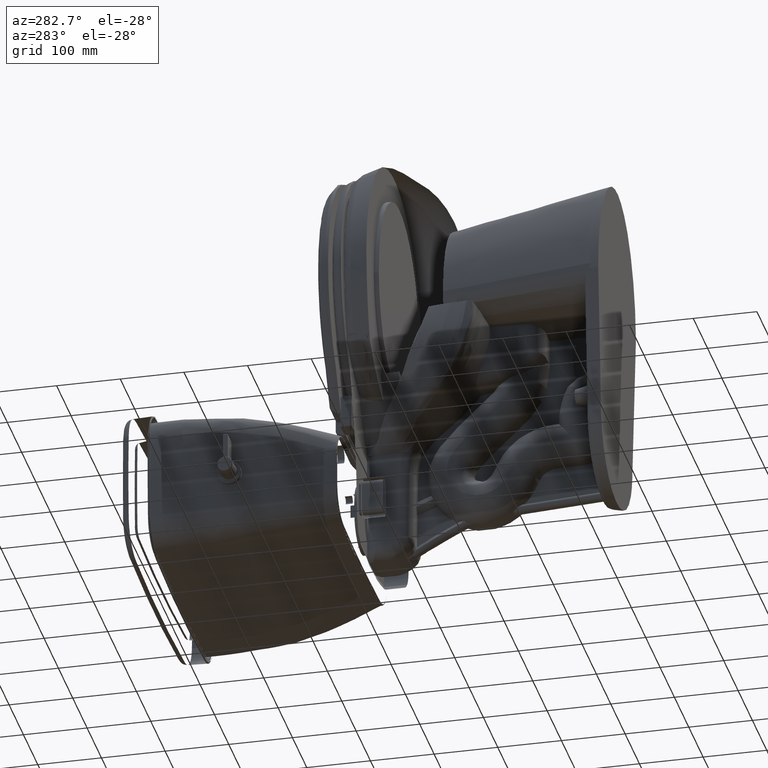
[diagram: clean part render]
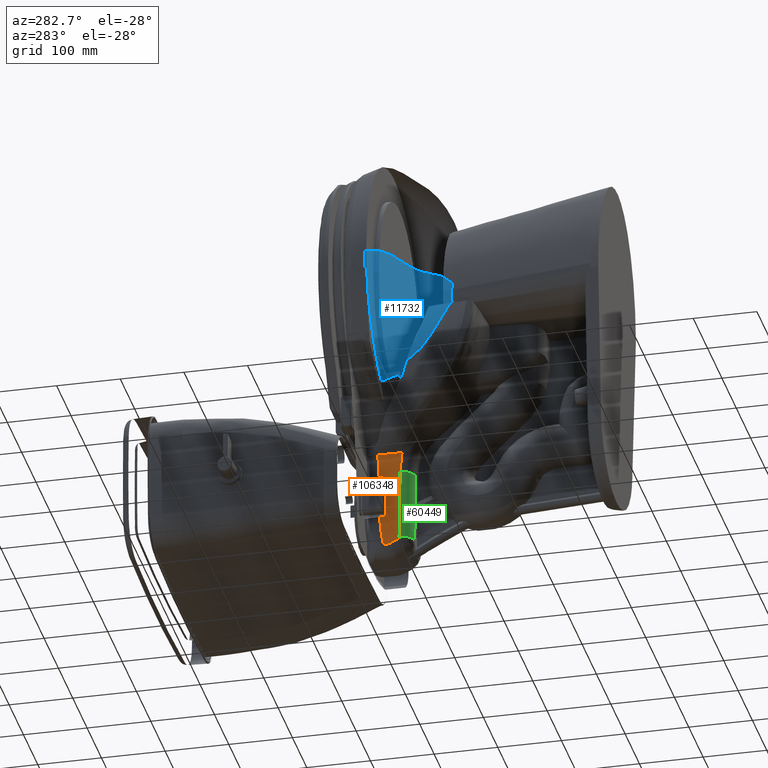
[diagram: same view with three faces highlighted in distinct colors, each labeled with its STEP entity id]
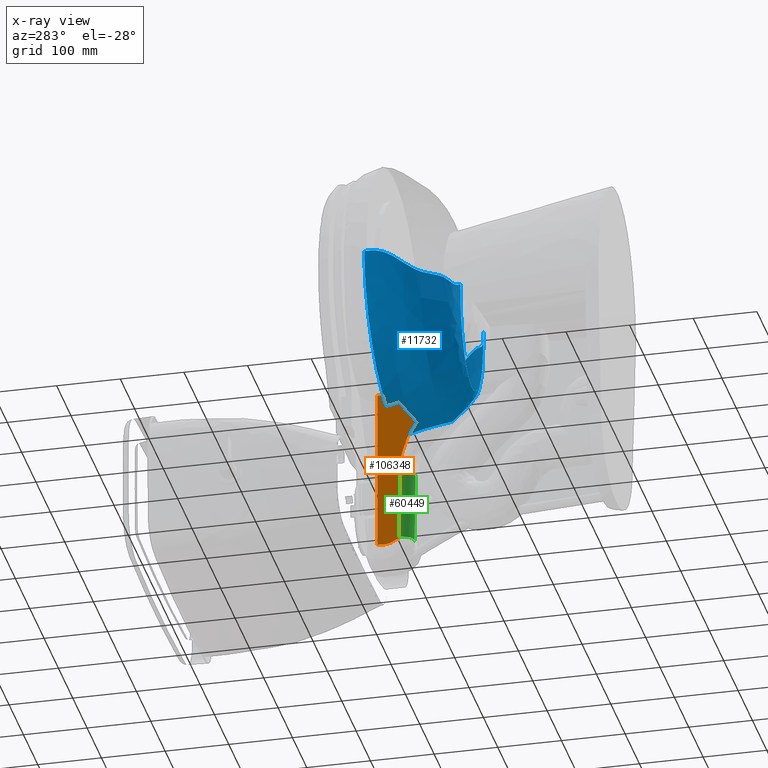
[diagram: x-ray of the same camera — body ghosted, the three highlighted faces saturated]
A machine part, auxiliary view with three faces highlighted in distinct colors.
The next image is the same camera in x-ray (body ghosted, the three faces saturated) — at least one of them is partly hidden behind the body in this view.
Their STEP definitions:

[orange] entity #106348 — the highlighted planar face has unit normal (-1, -0, 0).
#329 = ORIENTED_EDGE ( 'NONE', *, *, #164025, .T. ) ;
#518 = CARTESIAN_POINT ( 'NONE',  ( -1.624015748031496300, 11.07513254023550800, 13.10380930790444700 ) ) ;
#1858 = CARTESIAN_POINT ( 'NONE',  ( -1.624015748031496300, 11.07906256279257000, 13.10310074710345600 ) ) ;
#4139 = CARTESIAN_POINT ( 'NONE',  ( -1.624015748031496300, 11.05793984446220600, 13.11253673810275400 ) ) ;
#4388 = CARTESIAN_POINT ( 'NONE',  ( -1.624015748031496500, 11.43326119549833600, 13.83560855663342800 ) ) ;
#7992 = CARTESIAN_POINT ( 'NONE',  ( -1.624015748031496300, 4.175544082836213800, 12.54868173038691400 ) ) ;
#8673 = CARTESIAN_POINT ( 'NONE',  ( -1.624015748031495800, 6.429665055986050400, 13.05543070827092000 ) ) ;
#9199 = CARTESIAN_POINT ( 'NONE',  ( -1.624015748031496300, 11.08573345675515200, 13.10213947946317400 ) ) ;
#10593 = VERTEX_POINT ( 'NONE', #75763 ) ;
#12265 = ORIENTED_EDGE ( 'NONE', *, *, #110493, .T. ) ;
#12944 = DIRECTION ( 'NONE',  ( 0.0000000000000000000, 7.934768962186999700E-016, 1.000000000000000000 ) ) ;
#15419 = CARTESIAN_POINT ( 'NONE',  ( -1.624015748031496500, 11.07129820226846400, 13.10493544380893600 ) ) ;
#19141 = CARTESIAN_POINT ( 'NONE',  ( -1.624015748031496300, 11.05793984446214200, 13.11253673810267600 ) ) ;
#19398 = CARTESIAN_POINT ( 'NONE',  ( -1.624015748031496300, 11.12704714347317000, 13.15148929596849200 ) ) ;
#20832 = VERTEX_POINT ( 'NONE', #173252 ) ;
#21263 = EDGE_CURVE ( 'NONE', #20832, #66821, #135536, .T. ) ;
#22199 = CARTESIAN_POINT ( 'NONE',  ( -1.624015748031496500, 4.089724197103585400, 12.50727833411109000 ) ) ;
#23548 = CARTESIAN_POINT ( 'NONE',  ( -1.624015748031496500, 4.065249054823715000, 12.49517539205028900 ) ) ;
#23819 = VERTEX_POINT ( 'NONE', #116551 ) ;
#24220 = CARTESIAN_POINT ( 'NONE',  ( -1.624015748031496500, 5.965570586294322900, 13.03302946129430300 ) ) ;
#30762 = VERTEX_POINT ( 'NONE', #153174 ) ;
#31215 = EDGE_CURVE ( 'NONE', #189430, #20832, #57933, .T. ) ;
#31964 = CARTESIAN_POINT ( 'NONE',  ( -1.624015748031496300, 6.583685011007480300, 12.26460079878385700 ) ) ;
#33990 = EDGE_CURVE ( 'NONE', #74032, #189430, #190647, .T. ) ;
#34502 = ORIENTED_EDGE ( 'NONE', *, *, #31215, .T. ) ;
#36182 = AXIS2_PLACEMENT_3D ( 'NONE', #31964, #93646, #63186 ) ;
#36255 = CARTESIAN_POINT ( 'NONE',  ( -1.624015748031496300, 11.12766103383754800, 13.14508512891309000 ) ) ;
#36394 = VECTOR ( 'NONE', #127505, 39.37007874015748100 ) ;
#42126 = ORIENTED_EDGE ( 'NONE', *, *, #85400, .T. ) ;
#42408 = EDGE_CURVE ( 'NONE', #23819, #80150, #113493, .T. ) ;
#48134 = VECTOR ( 'NONE', #140925, 39.37007874015748900 ) ;
#50555 = CARTESIAN_POINT ( 'NONE',  ( -1.624015748031496300, 11.12304963074632800, 13.12578169295937500 ) ) ;
#51226 = CARTESIAN_POINT ( 'NONE',  ( -1.624015748031496300, 11.12753766871622200, 13.14829012194472400 ) ) ;
#51796 = CARTESIAN_POINT ( 'NONE',  ( -1.624015748031496500, 11.44351013723120400, 14.09393940311137600 ) ) ;
#52569 = CARTESIAN_POINT ( 'NONE',  ( -1.624015748031495600, 11.10490460382959700, 13.10700149408048500 ) ) ;
#55403 = CARTESIAN_POINT ( 'NONE',  ( -1.624015748031496300, 4.118270852902545800, 12.52122959937917400 ) ) ;
#55694 = B_SPLINE_CURVE_WITH_KNOTS ( 'NONE', 3,
 ( #160115, #51796, #97140, #4388, #67351, #190586 ),
 .UNSPECIFIED., .F., .F.,
 ( 4, 2, 4 ),
 ( 0.0000000000000000000, 0.5000000000000000000, 1.000000000000000000 ),
 .UNSPECIFIED. ) ;
#57933 = LINE ( 'NONE', #4139, #48134 ) ;
#63186 = DIRECTION ( 'NONE',  ( -1.110223024625000000E-016, 0.0000000000000000000, 1.000000000000000000 ) ) ;
#66804 = CARTESIAN_POINT ( 'NONE',  ( -1.624015748031496300, 11.11945713101001800, 13.12010422923673900 ) ) ;
#66821 = VERTEX_POINT ( 'NONE', #163835 ) ;
#67351 = CARTESIAN_POINT ( 'NONE',  ( -1.624015748031496500, 11.41632082991931300, 13.75139125071499700 ) ) ;
#67462 = CARTESIAN_POINT ( 'NONE',  ( -1.624015748031496300, 11.09274276259547600, 13.10286191171119300 ) ) ;
#68950 = CARTESIAN_POINT ( 'NONE',  ( -1.624015748031496300, 4.524221175839065800, 12.70078332963766800 ) ) ;
#70292 = CARTESIAN_POINT ( 'NONE',  ( -1.624015748031496500, 5.734390395520866200, 13.00634960247934100 ) ) ;
#70969 = CARTESIAN_POINT ( 'NONE',  ( -1.624015748031496500, 3.326668050690386700, 12.05027422458211300 ) ) ;
#73818 = EDGE_CURVE ( 'NONE', #80150, #74032, #159871, .T. ) ;
#74032 = VERTEX_POINT ( 'NONE', #100596 ) ;
#75763 = CARTESIAN_POINT ( 'NONE',  ( -1.624015748031496500, 11.42707137129212400, 14.45337552549015700 ) ) ;
#77222 = FACE_OUTER_BOUND ( 'NONE', #110668, .T. ) ;
#79696 = CARTESIAN_POINT ( 'NONE',  ( -1.624015748031495800, 11.06089892463452400, 13.11006244487558600 ) ) ;
#79888 = CARTESIAN_POINT ( 'NONE',  ( -1.624015748031495800, 11.42978268679844900, 14.17935511759764100 ) ) ;
#80150 = VERTEX_POINT ( 'NONE', #113694 ) ;
#82089 = ORIENTED_EDGE ( 'NONE', *, *, #98176, .T. ) ;
#82349 = CARTESIAN_POINT ( 'NONE',  ( -1.624015748031495800, 11.11736636019339400, 13.11746121728465700 ) ) ;
#83826 = CARTESIAN_POINT ( 'NONE',  ( -1.624015748031496500, 5.841028490792696800, 13.01974266722637600 ) ) ;
#84498 = CARTESIAN_POINT ( 'NONE',  ( -1.624015748031496300, 4.290810216046528700, 12.60178439428873700 ) ) ;
#85174 = CARTESIAN_POINT ( 'NONE',  ( -1.624015748031496300, 6.215077449489573500, 13.05205713275296900 ) ) ;
#85400 = EDGE_CURVE ( 'NONE', #10593, #187359, #189400, .T. ) ;
#93646 = DIRECTION ( 'NONE',  ( -1.000000000000000000, 1.368455531567204200E-048, -1.110223024625000000E-016 ) ) ;
#96860 = ORIENTED_EDGE ( 'NONE', *, *, #42408, .T. ) ;
#97140 = CARTESIAN_POINT ( 'NONE',  ( -1.624015748031496500, 11.44694999765457800, 14.00809017207795500 ) ) ;
#98176 = EDGE_CURVE ( 'NONE', #30762, #119554, #157514, .T. ) ;
#99389 = CARTESIAN_POINT ( 'NONE',  ( -1.624015748031496500, 5.145805366068331400, 12.90181881944287300 ) ) ;
#100596 = CARTESIAN_POINT ( 'NONE',  ( -1.624015748031496300, 11.07906256279257000, 13.10310074710345600 ) ) ;
#101045 = CARTESIAN_POINT ( 'NONE',  ( -1.624015748031496500, 11.86058292616299200, 14.45313440424316400 ) ) ;
#106348 = ADVANCED_FACE ( 'NONE', ( #77222 ), #109887, .T. ) ;
#107941 = CARTESIAN_POINT ( 'NONE',  ( -1.624015748031496300, 3.326668050690512400, 12.05027422458228300 ) ) ;
#107980 = VECTOR ( 'NONE', #134244, 39.37007874015748900 ) ;
#109887 = PLANE ( 'NONE',  #36182 ) ;
#110493 = EDGE_CURVE ( 'NONE', #66821, #30762, #113458, .T. ) ;
#110668 = EDGE_LOOP ( 'NONE', ( #34502, #187834, #12265, #82089, #115001, #42126, #329, #96860, #145669, #140575 ) ) ;
#112177 = CARTESIAN_POINT ( 'NONE',  ( -1.624015748031495600, 11.12717344383685100, 13.13866350483407400 ) ) ;
#112582 = CARTESIAN_POINT ( 'NONE',  ( -1.624015748031496500, 11.42707137129212700, 14.45337552549015900 ) ) ;
#113458 = LINE ( 'NONE', #107941, #171490 ) ;
#113493 = LINE ( 'NONE', #161694, #118410 ) ;
#113694 = CARTESIAN_POINT ( 'NONE',  ( -1.624015748031496300, 11.12704714347317000, 13.15148929596849200 ) ) ;
#114873 = CARTESIAN_POINT ( 'NONE',  ( -1.624015748031496300, 11.11050579545679200, 13.11047850953001500 ) ) ;
#115001 = ORIENTED_EDGE ( 'NONE', *, *, #131308, .F. ) ;
#115681 = CARTESIAN_POINT ( 'NONE',  ( -1.624015748031496300, 5.778810277065876900, 13.01215603060776100 ) ) ;
#116347 = CARTESIAN_POINT ( 'NONE',  ( -1.624015748031495800, 4.069370140719893700, 12.49722199234837700 ) ) ;
#116551 = CARTESIAN_POINT ( 'NONE',  ( -1.624015748031496300, 11.38928449983937200, 13.66919744660039400 ) ) ;
#116671 = CARTESIAN_POINT ( 'NONE',  ( -1.624015748031496300, 1.222724008596811200, 15.24645292999960600 ) ) ;
#116967 = CARTESIAN_POINT ( 'NONE',  ( -1.624015748031497200, 1.222724008596810100, 14.45905123339978700 ) ) ;
#118410 = VECTOR ( 'NONE', #196188, 39.37007874015748100 ) ;
#119554 = VERTEX_POINT ( 'NONE', #116967 ) ;
#123540 = DIRECTION ( 'NONE',  ( -1.043826510325514000E-016, -0.8039073083393254400, 0.5947546045207390300 ) ) ;
#123788 = CARTESIAN_POINT ( 'NONE',  ( -1.624015748031496300, 11.05793984446214200, 13.11253673810267600 ) ) ;
#127505 = DIRECTION ( 'NONE',  ( 0.0000000000000000000, 0.009894090788549159500, -0.9999510522857946200 ) ) ;
#130920 = VECTOR ( 'NONE', #12944, 39.37007874015748100 ) ;
#131222 = CARTESIAN_POINT ( 'NONE',  ( -1.624015748031496500, 5.725508369038938600, 13.00515350682136200 ) ) ;
#131308 = EDGE_CURVE ( 'NONE', #10593, #119554, #158912, .T. ) ;
#131903 = CARTESIAN_POINT ( 'NONE',  ( -1.624015748031495800, 3.804498906690593000, 12.36527572712799400 ) ) ;
#134244 = DIRECTION ( 'NONE',  ( -1.110222852894106100E-016, -0.9999998453180956000, 0.0005562048046673531800 ) ) ;
#135536 = B_SPLINE_CURVE_WITH_KNOTS ( 'NONE', 3,
 ( #176595, #8673, #85174, #24220, #83826, #115681, #163052, #70292, #131222, #162375, #192190, #99389, #193511, #68950, #84498, #7992, #55403, #22199, #192848, #116347, #23548, #131903, #178612, #70969 ),
 .UNSPECIFIED., .F., .F.,
 ( 4, 1, 1, 1, 1, 1, 2, 2, 2, 1, 1, 1, 1, 1, 2, 2, 4 ),
 ( 0.0000000000000000000, 0.1250000000000045000, 0.1875000000000067400, 0.2187500000000077700, 0.2343750000000078300, 0.2421875000000078500, 0.2460937500000078500, 0.2500000000000078300, 0.5000000000000091000, 0.6250000000000089900, 0.6875000000000087700, 0.7187500000000086600, 0.7343750000000089900, 0.7421875000000093300, 0.7460937500000097700, 0.7500000000000101000, 1.000000000000000000 ),
 .UNSPECIFIED. ) ;
#140575 = ORIENTED_EDGE ( 'NONE', *, *, #33990, .T. ) ;
#140925 = DIRECTION ( 'NONE',  ( 0.0000000000000000000, -0.9999087062783822400, -0.01351218371291979500 ) ) ;
#141331 = CARTESIAN_POINT ( 'NONE',  ( -1.624015748031496500, 11.07708156634918200, 13.10338517101672900 ) ) ;
#141997 = CARTESIAN_POINT ( 'NONE',  ( -1.624015748031496700, 11.06936102451516900, 13.10566276766392100 ) ) ;
#144602 = CARTESIAN_POINT ( 'NONE',  ( -1.624015748031495800, 11.12653847992384100, 13.13530021934748100 ) ) ;
#145260 = CARTESIAN_POINT ( 'NONE',  ( -1.624015748031496700, 11.12041836757591000, 13.12148165518684600 ) ) ;
#145669 = ORIENTED_EDGE ( 'NONE', *, *, #73818, .T. ) ;
#153174 = CARTESIAN_POINT ( 'NONE',  ( -1.624015748031496500, 1.222724008596810100, 13.60683478039331000 ) ) ;
#157514 = LINE ( 'NONE', #116671, #130920 ) ;
#158912 = LINE ( 'NONE', #101045, #107980 ) ;
#159550 = CARTESIAN_POINT ( 'NONE',  ( -1.624015748031496300, 11.12448136344257300, 13.12890196367263600 ) ) ;
#159871 = B_SPLINE_CURVE_WITH_KNOTS ( 'NONE', 3,
 ( #19398, #51226, #36255, #112177, #144602, #159550, #50555, #145260, #66804, #82349, #190700, #114873, #52569, #67462, #9199, #164916 ),
 .UNSPECIFIED., .F., .F.,
 ( 4, 2, 2, 2, 2, 2, 2, 4 ),
 ( 0.0000000000000000000, 0.09638077415925873400, 0.1927615483185174700, 0.2891423224777761600, 0.3373327095574055200, 0.3855230966370349300, 0.5782846449556448000, 0.7710461932742547200 ),
 .UNSPECIFIED. ) ;
#160115 = CARTESIAN_POINT ( 'NONE',  ( -1.624015748031495800, 11.42978268679844900, 14.17935511759764100 ) ) ;
#161694 = CARTESIAN_POINT ( 'NONE',  ( -1.624015748031496500, 11.38928449983937200, 13.66919744660039400 ) ) ;
#162375 = CARTESIAN_POINT ( 'NONE',  ( -1.624015748031495800, 5.721126461639285800, 13.00455791138812200 ) ) ;
#163052 = CARTESIAN_POINT ( 'NONE',  ( -1.624015748031496300, 5.747714378708470100, 13.00812690240229400 ) ) ;
#163835 = CARTESIAN_POINT ( 'NONE',  ( -1.624015748031496500, 3.326668050690386700, 12.05027422458211300 ) ) ;
#164025 = EDGE_CURVE ( 'NONE', #187359, #23819, #55694, .T. ) ;
#164916 = CARTESIAN_POINT ( 'NONE',  ( -1.624015748031496300, 11.07906256279257000, 13.10310074710345600 ) ) ;
#171490 = VECTOR ( 'NONE', #123540, 39.37007874015748100 ) ;
#173252 = CARTESIAN_POINT ( 'NONE',  ( -1.624015613408317900, 6.573045496275518900, 13.05193048887822500 ) ) ;
#176595 = CARTESIAN_POINT ( 'NONE',  ( -1.624015613408317900, 6.573045496275518900, 13.05193048887822500 ) ) ;
#178612 = CARTESIAN_POINT ( 'NONE',  ( -1.624015748031495600, 3.559642418893029300, 12.21764149009979600 ) ) ;
#187359 = VERTEX_POINT ( 'NONE', #79888 ) ;
#187834 = ORIENTED_EDGE ( 'NONE', *, *, #21263, .T. ) ;
#189400 = LINE ( 'NONE', #112582, #36394 ) ;
#189430 = VERTEX_POINT ( 'NONE', #19141 ) ;
#190586 = CARTESIAN_POINT ( 'NONE',  ( -1.624015748031496300, 11.38928449983937200, 13.66919744660039400 ) ) ;
#190647 = B_SPLINE_CURVE_WITH_KNOTS ( 'NONE', 3,
 ( #1858, #141331, #518, #15419, #141997, #194996, #79696, #123788 ),
 .UNSPECIFIED., .F., .F.,
 ( 4, 2, 2, 4 ),
 ( 0.7710461932742547200, 0.8282846449556977600, 0.8855230966371407900, 1.000000000000000000 ),
 .UNSPECIFIED. ) ;
#190700 = CARTESIAN_POINT ( 'NONE',  ( -1.624015748031495800, 11.11620782586881600, 13.11616872860437900 ) ) ;
#192190 = CARTESIAN_POINT ( 'NONE',  ( -1.624015748031496300, 5.428680046497935200, 12.96443056511968500 ) ) ;
#192848 = CARTESIAN_POINT ( 'NONE',  ( -1.624015748031496500, 4.077509193011430900, 12.50125096333243800 ) ) ;
#193511 = CARTESIAN_POINT ( 'NONE',  ( -1.624015748031496300, 4.729222615727366900, 12.77328574430013400 ) ) ;
#194996 = CARTESIAN_POINT ( 'NONE',  ( -1.624015748031496300, 11.06412410466929700, 13.10803466561247500 ) ) ;
#196188 = DIRECTION ( 'NONE',  ( 4.707353719254776100E-016, -0.4518714063449485500, -0.8920830858882138300 ) ) ;

[blue] entity #11732 — the highlighted face is a freeform B-spline surface patch.
#411 = CARTESIAN_POINT ( 'NONE',  ( -6.374789803220472200, -6.545680079023622300, 11.61000269624488400 ) ) ;
#1095 = CARTESIAN_POINT ( 'NONE',  ( 0.02612232093976377800, 1.149805500592677300, 8.976377952755905600 ) ) ;
#7332 = CARTESIAN_POINT ( 'NONE',  ( -7.663330732019685100, -3.451059756331889900, 13.89763779527559100 ) ) ;
#9605 = CARTESIAN_POINT ( 'NONE',  ( 5.918047356978740400, -2.949789798700787700, 9.453031909952363400 ) ) ;
#11368 = CARTESIAN_POINT ( 'NONE',  ( 3.164905371275551300, -3.682291863497244100, 8.976377952755905600 ) ) ;
#11732 = ADVANCED_FACE ( 'NONE', ( #56056 ), #158484, .T. ) ;
#12021 = CARTESIAN_POINT ( 'NONE',  ( 7.669822629392126800, -3.452692490822441700, 13.89763779527559100 ) ) ;
#12684 = CARTESIAN_POINT ( 'NONE',  ( 4.411237578590551300, 0.4122800545987007600, 9.453031909952363400 ) ) ;
#13333 = CARTESIAN_POINT ( 'NONE',  ( 2.556470637829763700, -0.9222876452287401800, 8.976377952755905600 ) ) ;
#13987 = CARTESIAN_POINT ( 'NONE',  ( -3.017594738014961000, -2.145177111233071100, 8.976377952755905600 ) ) ;
#14643 = CARTESIAN_POINT ( 'NONE',  ( -4.087713333460629700, 4.640137322735038900, 10.82833840437598400 ) ) ;
#15316 = CARTESIAN_POINT ( 'NONE',  ( -5.984139236803150300, 0.4541611670214961100, 12.68380940278897700 ) ) ;
#15980 = CARTESIAN_POINT ( 'NONE',  ( 2.219025534785747900, 5.313153716440944600, 10.82833840437598400 ) ) ;
#16654 = CARTESIAN_POINT ( 'NONE',  ( -1.787237832325197000, -0.4750244352933070700, 9.808365518358268500 ) ) ;
#17091 = VERTEX_POINT ( 'NONE', #126774 ) ;
#20221 = CARTESIAN_POINT ( 'NONE',  ( 3.164905371275551300, -3.682291863497244100, 8.976377952755905600 ) ) ;
#21542 = CARTESIAN_POINT ( 'NONE',  ( 1.874215126277323000, 0.1666678062541732400, 8.976377952755905600 ) ) ;
#22901 = CARTESIAN_POINT ( 'NONE',  ( 0.02612232093976377800, 1.149805500592677300, 8.976377952755905600 ) ) ;
#28235 = CARTESIAN_POINT ( 'NONE',  ( 4.326051432180708600, 1.926824449947441000, 12.68380940278897700 ) ) ;
#28879 = CARTESIAN_POINT ( 'NONE',  ( 4.191538315979134000, 4.647348280815748500, 10.82833840437598400 ) ) ;
#29535 = CARTESIAN_POINT ( 'NONE',  ( -6.379703382763779900, -4.810097242177166200, 11.61000269624488400 ) ) ;
#30181 = CARTESIAN_POINT ( 'NONE',  ( -2.549952660448032000, -0.8307167114346457600, 8.976377952755905600 ) ) ;
#30843 = CARTESIAN_POINT ( 'NONE',  ( -0.03626714788866141500, 0.8969876486343307800, 11.61000269624488400 ) ) ;
#31501 = CARTESIAN_POINT ( 'NONE',  ( -3.048967992540157800, -8.288413450125984700, 9.808365518358268500 ) ) ;
#31916 = ORIENTED_EDGE ( 'NONE', *, *, #182437, .T. ) ;
#40756 = VERTEX_POINT ( 'NONE', #162171 ) ;
#41159 = CARTESIAN_POINT ( 'NONE',  ( 1.724131792577834800, -0.5166397306409449300, 9.808365518358268500 ) ) ;
#41841 = CARTESIAN_POINT ( 'NONE',  ( 2.977838378661024100, -6.241049428700787200, 9.808365518358268500 ) ) ;
#43181 = CARTESIAN_POINT ( 'NONE',  ( 7.726143887099606600, -3.400828018284645500, 12.68380940278897700 ) ) ;
#45143 = CARTESIAN_POINT ( 'NONE',  ( 0.003946237597480315200, 3.124598654075433100, 13.89763779527559100 ) ) ;
#45801 = CARTESIAN_POINT ( 'NONE',  ( -2.259103294147244400, 2.883673840308071100, 12.68380940278897700 ) ) ;
#45931 = CARTESIAN_POINT ( 'NONE',  ( 7.669822629392126800, -3.452692490822441700, 13.89763779527559100 ) ) ;
#46469 = CARTESIAN_POINT ( 'NONE',  ( -3.164017844826378000, -4.959986052440944700, 8.976377952755905600 ) ) ;
#47138 = CARTESIAN_POINT ( 'NONE',  ( -0.02474210709877953200, 0.9038557958785433700, 9.808365518358268500 ) ) ;
#49802 = CARTESIAN_POINT ( 'NONE',  ( -7.663544278913386500, -5.456497436996063900, 13.89763779527559100 ) ) ;
#50363 = B_SPLINE_CURVE_WITH_KNOTS ( 'NONE', 12,
 ( #52073, #144108, #98755, #160391, #193527, #161724, #22901, #98101, #21542, #100755, #162395, #20221, #69639 ),
 .UNSPECIFIED., .F., .F.,
 ( 13, 13 ),
 ( 0.0000000000000000000, 1.000000000000000000 ),
 .UNSPECIFIED. ) ;
#50458 = CARTESIAN_POINT ( 'NONE',  ( -7.401834176850393900, -0.5504598801287402500, 10.82833840437598400 ) ) ;
#51129 = CARTESIAN_POINT ( 'NONE',  ( -5.796418717507873600, -3.064735862968897900, 9.453031909952363400 ) ) ;
#52073 = CARTESIAN_POINT ( 'NONE',  ( -3.164017844826378000, -4.959986052440944700, 8.976377952755905600 ) ) ;
#52716 = CARTESIAN_POINT ( 'NONE',  ( -5.943239271972441200, 0.3796972369427953400, 13.89763779527559100 ) ) ;
#55664 = CARTESIAN_POINT ( 'NONE',  ( 7.519254881346456400, -0.5398265804232282900, 10.82833840437598400 ) ) ;
#56056 = FACE_OUTER_BOUND ( 'NONE', #113644, .T. ) ;
#56783 = CARTESIAN_POINT ( 'NONE',  ( 3.154710663655827300, 1.205935376863700900, 9.453031909952363400 ) ) ;
#57460 = CARTESIAN_POINT ( 'NONE',  ( 7.726001198934253200, -5.417964312405511700, 12.68380940278897700 ) ) ;
#58772 = CARTESIAN_POINT ( 'NONE',  ( 6.315013548710629400, -4.800385479775590300, 11.61000269624488400 ) ) ;
#58837 = ORIENTED_EDGE ( 'NONE', *, *, #168187, .T. ) ;
#59435 = CARTESIAN_POINT ( 'NONE',  ( 3.077123086246102500, -5.071905309736219900, 8.976377952755905600 ) ) ;
#60084 = CARTESIAN_POINT ( 'NONE',  ( 0.005569285801535433700, 3.214666622947952600, 12.68380940278897700 ) ) ;
#60739 = CARTESIAN_POINT ( 'NONE',  ( -7.663544278913386500, -5.456497436996063900, 13.89763779527559100 ) ) ;
#61399 = CARTESIAN_POINT ( 'NONE',  ( -3.095455697010236000, -6.170297812496063900, 9.808365518358268500 ) ) ;
#62054 = CARTESIAN_POINT ( 'NONE',  ( -1.843404246056299200, 0.2333340141900787600, 8.976377952755905600 ) ) ;
#62730 = CARTESIAN_POINT ( 'NONE',  ( -5.908980294161416700, -3.072380172512598300, 11.61000269624488400 ) ) ;
#64213 = CARTESIAN_POINT ( 'NONE',  ( 0.003946237597480315200, 3.124598654075433100, 13.89763779527559100 ) ) ;
#64877 = CARTESIAN_POINT ( 'NONE',  ( 5.950547036489763500, 0.3784307397858267500, 13.89763779527559100 ) ) ;
#69639 = CARTESIAN_POINT ( 'NONE',  ( 3.077123086246102500, -5.071905309736219900, 8.976377952755905600 ) ) ;
#72337 = CARTESIAN_POINT ( 'NONE',  ( 7.495028456964961400, 0.8986575449828740900, 10.82833840437598400 ) ) ;
#73000 = CARTESIAN_POINT ( 'NONE',  ( 7.096808293681497100, -1.447193769712992200, 13.89763779527559100 ) ) ;
#73657 = CARTESIAN_POINT ( 'NONE',  ( 7.148990359150787700, -1.383677773799212500, 12.68380940278897700 ) ) ;
#74965 = CARTESIAN_POINT ( 'NONE',  ( 5.994529515770079100, 0.4525266153642126300, 12.68380940278897700 ) ) ;
#75611 = CARTESIAN_POINT ( 'NONE',  ( -2.244695031103937300, 2.795426621779960800, 13.89763779527559100 ) ) ;
#76822 = VERTEX_POINT ( 'NONE', #195044 ) ;
#76905 = CARTESIAN_POINT ( 'NONE',  ( -3.591065488205905900, -0.2164722385470472500, 11.61000269624488400 ) ) ;
#77563 = CARTESIAN_POINT ( 'NONE',  ( -4.315261481578740000, 1.928002494884133900, 12.68380940278897700 ) ) ;
#78249 = CARTESIAN_POINT ( 'NONE',  ( -7.089889302519685200, -1.445683114342913200, 13.89763779527559100 ) ) ;
#79720 = CARTESIAN_POINT ( 'NONE',  ( 7.096808293681497100, -1.447193769712992200, 13.89763779527559100 ) ) ;
#80910 = CARTESIAN_POINT ( 'NONE',  ( -7.717208584893700900, -5.415845826082677800, 12.68380940278897700 ) ) ;
#83836 = CARTESIAN_POINT ( 'NONE',  ( 2.252517352217480600, 2.794947740912559400, 13.89763779527559100 ) ) ;
#84508 = CARTESIAN_POINT ( 'NONE',  ( -7.663544278913386500, -5.456497436996063900, 13.89763779527559100 ) ) ;
#87914 = CARTESIAN_POINT ( 'NONE',  ( 2.252517352217480600, 2.794947740912559400, 13.89763779527559100 ) ) ;
#89464 = ORIENTED_EDGE ( 'NONE', *, *, #114233, .F. ) ;
#89897 = CARTESIAN_POINT ( 'NONE',  ( 2.801514132412086700, -4.094649515181102700, 9.808365518358268500 ) ) ;
#91213 = CARTESIAN_POINT ( 'NONE',  ( -2.454653649397637900, -2.061424651637401500, 9.808365518358268500 ) ) ;
#93202 = CARTESIAN_POINT ( 'NONE',  ( -3.154686678935827000, 1.137206021322283700, 9.453031909952363400 ) ) ;
#93854 = CARTESIAN_POINT ( 'NONE',  ( -5.943239271972441200, 0.3796972369427953400, 13.89763779527559100 ) ) ;
#98101 = CARTESIAN_POINT ( 'NONE',  ( 1.002964173743819100, 0.8869503837922440000, 8.976377952755905600 ) ) ;
#98755 = CARTESIAN_POINT ( 'NONE',  ( -3.017594738014961000, -2.145177111233071100, 8.976377952755905600 ) ) ;
#100755 = CARTESIAN_POINT ( 'NONE',  ( 2.556470637829763700, -0.9222876452287401800, 8.976377952755905600 ) ) ;
#101670 = CARTESIAN_POINT ( 'NONE',  ( 7.669609082498819700, -5.458130171484251400, 13.89763779527559100 ) ) ;
#102926 = CARTESIAN_POINT ( 'NONE',  ( 7.669609082498819700, -5.458130171484251400, 13.89763779527559100 ) ) ;
#104117 = CARTESIAN_POINT ( 'NONE',  ( 5.950547036489763500, 0.3784307397858267500, 13.89763779527559100 ) ) ;
#105439 = CARTESIAN_POINT ( 'NONE',  ( 2.376145249629645600, -2.118454352139763900, 9.808365518358268500 ) ) ;
#106089 = CARTESIAN_POINT ( 'NONE',  ( 6.920814322548426200, 2.325657145947165500, 10.82833840437598400 ) ) ;
#106742 = CARTESIAN_POINT ( 'NONE',  ( 0.05059573046082677800, 5.542142333017323200, 10.82833840437598400 ) ) ;
#107419 = CARTESIAN_POINT ( 'NONE',  ( -4.286260647338583100, 1.845152815168031600, 13.89763779527559100 ) ) ;
#107548 = VERTEX_POINT ( 'NONE', #180047 ) ;
#108086 = CARTESIAN_POINT ( 'NONE',  ( 0.8978879799185038900, 0.5319466690856693400, 9.808365518358268500 ) ) ;
#109430 = CARTESIAN_POINT ( 'NONE',  ( -1.655910704732677300, 1.669525499403149900, 9.453031909952363400 ) ) ;
#113644 = EDGE_LOOP ( 'NONE', ( #31916, #89464, #58837, #136920 ) ) ;
#114233 = EDGE_CURVE ( 'NONE', #40756, #17091, #136980, .T. ) ;
#116447 = B_SPLINE_CURVE_WITH_KNOTS ( 'NONE', 12,
 ( #102926, #45931, #79720, #64877, #161060, #83836, #64213, #131233, #173170, #52716, #130579, #7332, #84508 ),
 .UNSPECIFIED., .F., .F.,
 ( 13, 13 ),
 ( 0.0000000000000000000, 1.000000000000000000 ),
 .UNSPECIFIED. ) ;
#116612 = CARTESIAN_POINT ( 'NONE',  ( 2.911722171533582600, -8.357145796724410000, 9.808365518358268500 ) ) ;
#121051 = CARTESIAN_POINT ( 'NONE',  ( 4.293880544390945400, 1.844239167980787500, 13.89763779527559100 ) ) ;
#121706 = CARTESIAN_POINT ( 'NONE',  ( 2.994266746316418100, -2.252984814942913700, 8.976377952755905600 ) ) ;
#122355 = CARTESIAN_POINT ( 'NONE',  ( -7.716800995523621900, -3.398714282303149800, 12.68380940278897700 ) ) ;
#123017 = CARTESIAN_POINT ( 'NONE',  ( -5.692292672051181100, 3.606633909862361900, 10.82833840437598400 ) ) ;
#123681 = CARTESIAN_POINT ( 'NONE',  ( -6.810522156515748500, 2.314489975936378000, 10.82833840437598400 ) ) ;
#124851 = EDGE_CURVE ( 'NONE', #107548, #76822, #166776, .T. ) ;
#125023 = CARTESIAN_POINT ( 'NONE',  ( -7.139098643374016000, -1.381725506972441000, 12.68380940278897700 ) ) ;
#126774 = CARTESIAN_POINT ( 'NONE',  ( 3.077123086246102500, -5.071905309736219900, 8.976377952755905600 ) ) ;
#130579 = CARTESIAN_POINT ( 'NONE',  ( -7.089889302519685200, -1.445683114342913200, 13.89763779527559100 ) ) ;
#131233 = CARTESIAN_POINT ( 'NONE',  ( -2.244695031103937300, 2.795426621779960800, 13.89763779527559100 ) ) ;
#131474 = CARTESIAN_POINT ( 'NONE',  ( 7.726001198934253200, -5.417964312405511700, 12.68380940278897700 ) ) ;
#136599 = CARTESIAN_POINT ( 'NONE',  ( 3.520034215963425300, -0.2111700159282283700, 11.61000269624488400 ) ) ;
#136920 = ORIENTED_EDGE ( 'NONE', *, *, #124851, .F. ) ;
#136980 = B_SPLINE_CURVE_WITH_KNOTS ( 'NONE', 6,
 ( #101670, #131474, #163302, #55664, #116612, #9605, #178865 ),
 .UNSPECIFIED., .F., .F.,
 ( 7, 7 ),
 ( 0.0000000000000000000, 1.000000000000000000 ),
 .UNSPECIFIED. ) ;
#137898 = CARTESIAN_POINT ( 'NONE',  ( -0.01108329104704724300, 1.865232153285551100, 9.453031909952363400 ) ) ;
#138563 = CARTESIAN_POINT ( 'NONE',  ( -5.733922520137795700, -1.873044504335039400, 9.453031909952363400 ) ) ;
#139226 = CARTESIAN_POINT ( 'NONE',  ( -0.9562548286874016400, 0.9220840777851574400, 8.976377952755905600 ) ) ;
#142522 = CARTESIAN_POINT ( 'NONE',  ( -3.048967992540157800, -8.288413450125984700, 9.808365518358268500 ) ) ;
#144108 = CARTESIAN_POINT ( 'NONE',  ( -3.220412251082283900, -3.567787157738976600, 8.976377952755905600 ) ) ;
#149472 = CARTESIAN_POINT ( 'NONE',  ( 5.317757993253149400, -0.6038186196594488300, 9.453031909952363400 ) ) ;
#151498 = CARTESIAN_POINT ( 'NONE',  ( 2.911722171532874300, -8.357145796724410000, 9.808365518358268500 ) ) ;
#152806 = CARTESIAN_POINT ( 'NONE',  ( -7.663330732019685100, -3.451059756331889900, 13.89763779527559100 ) ) ;
#153468 = CARTESIAN_POINT ( 'NONE',  ( -2.898885159424409600, -4.027731791511810900, 9.808365518358268500 ) ) ;
#154122 = CARTESIAN_POINT ( 'NONE',  ( -7.381048544968503900, 0.8872170665874409300, 10.82833840437598400 ) ) ;
#154774 = CARTESIAN_POINT ( 'NONE',  ( 1.639475923053897800, 1.705758059691259800, 9.453031909952363400 ) ) ;
#157427 = CARTESIAN_POINT ( 'NONE',  ( -3.164017844826378000, -4.959986052440944700, 8.976377952755905600 ) ) ;
#158484 = B_SPLINE_SURFACE_WITH_KNOTS ( 'NONE', 12, 6, ( 
 ( #196901, #57460, #198877, #167733, #151498, #182672, #59435 ),
 ( #12021, #43181, #58772, #72337, #41841, #167070, #11368 ),
 ( #73000, #73657, #180678, #106089, #89897, #149472, #121706 ),
 ( #104117, #74965, #198222, #183313, #105439, #12684, #13333 ),
 ( #121051, #28235, #136599, #28879, #41159, #56783, #165091 ),
 ( #87914, #196237, #171018, #15980, #108086, #154774, #168386 ),
 ( #45143, #60084, #30843, #106742, #47138, #137898, #1095 ),
 ( #75611, #45801, #183964, #200831, #186622, #109430, #139226 ),
 ( #107419, #77563, #76905, #14643, #16654, #93202, #62054 ),
 ( #93854, #15316, #184623, #123017, #91213, #199542, #30181 ),
 ( #78249, #125023, #62730, #123681, #153468, #170349, #13987 ),
 ( #152806, #122355, #29535, #154122, #61399, #138563, #185953 ),
 ( #60739, #169698, #411, #185281, #31501, #169038, #46469 ) ),
 .UNSPECIFIED., .F., .F., .F.,
 ( 13, 13 ),
 ( 7, 7 ),
 ( 0.0000000000000000000, 1.000000000000000000 ),
 ( 0.0000000000000000000, 1.000000000000000000 ),
 .UNSPECIFIED. ) ;
#160391 = CARTESIAN_POINT ( 'NONE',  ( -2.549952660448032000, -0.8307167114346457600, 8.976377952755905600 ) ) ;
#161060 = CARTESIAN_POINT ( 'NONE',  ( 4.293880544390945400, 1.844239167980787500, 13.89763779527559100 ) ) ;
#161724 = CARTESIAN_POINT ( 'NONE',  ( -0.9562548286874016400, 0.9220840777851574400, 8.976377952755905600 ) ) ;
#162171 = CARTESIAN_POINT ( 'NONE',  ( 7.669609082498819700, -5.458130171484251400, 13.89763779527559100 ) ) ;
#162395 = CARTESIAN_POINT ( 'NONE',  ( 2.994266746316418100, -2.252984814942913700, 8.976377952755905600 ) ) ;
#163302 = CARTESIAN_POINT ( 'NONE',  ( 6.312567109076772100, -6.535836333078741200, 11.61000269624488400 ) ) ;
#165091 = CARTESIAN_POINT ( 'NONE',  ( 1.874215126277323000, 0.1666678062541732400, 8.976377952755905600 ) ) ;
#166776 = B_SPLINE_CURVE_WITH_KNOTS ( 'NONE', 6,
 ( #157427, #51129, #142522, #50458, #174342, #80910, #49802 ),
 .UNSPECIFIED., .F., .F.,
 ( 7, 7 ),
 ( 0.0000000000000000000, 1.000000000000000000 ),
 .UNSPECIFIED. ) ;
#167070 = CARTESIAN_POINT ( 'NONE',  ( 5.823178344185040000, -1.755276488494094800, 9.453031909952363400 ) ) ;
#167733 = CARTESIAN_POINT ( 'NONE',  ( 7.519254881347638500, -0.5398265804212598600, 10.82833840437598400 ) ) ;
#168187 = EDGE_CURVE ( 'NONE', #40756, #76822, #116447, .T. ) ;
#168386 = CARTESIAN_POINT ( 'NONE',  ( 1.002964173743819100, 0.8869503837922440000, 8.976377952755905600 ) ) ;
#169038 = CARTESIAN_POINT ( 'NONE',  ( -5.796418717507873600, -3.064735862968897900, 9.453031909952363400 ) ) ;
#169698 = CARTESIAN_POINT ( 'NONE',  ( -7.717208584893700900, -5.415845826082677800, 12.68380940278897700 ) ) ;
#170349 = CARTESIAN_POINT ( 'NONE',  ( -5.261738351255906400, -0.7148161897370077800, 9.453031909952363400 ) ) ;
#171018 = CARTESIAN_POINT ( 'NONE',  ( 1.827810860245866300, 0.6124271747911417300, 11.61000269624488400 ) ) ;
#173170 = CARTESIAN_POINT ( 'NONE',  ( -4.286260647338583100, 1.845152815168031600, 13.89763779527559100 ) ) ;
#174342 = CARTESIAN_POINT ( 'NONE',  ( -6.374789803220472200, -6.545680079023622300, 11.61000269624488400 ) ) ;
#178865 = CARTESIAN_POINT ( 'NONE',  ( 3.077123086246102500, -5.071905309736219900, 8.976377952755905600 ) ) ;
#180047 = CARTESIAN_POINT ( 'NONE',  ( -3.164017844826378000, -4.959986052440944700, 8.976377952755905600 ) ) ;
#180678 = CARTESIAN_POINT ( 'NONE',  ( 5.841863700020078400, -3.063489735287008300, 11.61000269624488400 ) ) ;
#182437 = EDGE_CURVE ( 'NONE', #107548, #17091, #50363, .T. ) ;
#182672 = CARTESIAN_POINT ( 'NONE',  ( 5.918047356979134800, -2.949789798700393800, 9.453031909952363400 ) ) ;
#183313 = CARTESIAN_POINT ( 'NONE',  ( 5.799054920250000600, 3.616366949496850700, 10.82833840437598400 ) ) ;
#183964 = CARTESIAN_POINT ( 'NONE',  ( -1.899959280044488400, 0.6096578143857087600, 11.61000269624488400 ) ) ;
#184623 = CARTESIAN_POINT ( 'NONE',  ( -4.962151554334646200, -1.488950074007874000, 11.61000269624488400 ) ) ;
#185281 = CARTESIAN_POINT ( 'NONE',  ( -7.401834176850393900, -0.5504598801287402500, 10.82833840437598400 ) ) ;
#185953 = CARTESIAN_POINT ( 'NONE',  ( -3.220412251082283900, -3.567787157738976600, 8.976377952755905600 ) ) ;
#186622 = CARTESIAN_POINT ( 'NONE',  ( -0.9508927879007874600, 0.5539082717850394300, 9.808365518358268500 ) ) ;
#193527 = CARTESIAN_POINT ( 'NONE',  ( -1.843404246056299200, 0.2333340141900787600, 8.976377952755905600 ) ) ;
#195044 = CARTESIAN_POINT ( 'NONE',  ( -7.663544278913386500, -5.456497436996063900, 13.89763779527559100 ) ) ;
#196237 = CARTESIAN_POINT ( 'NONE',  ( 2.270152174741102400, 2.883056728665000200, 12.68380940278897700 ) ) ;
#196901 = CARTESIAN_POINT ( 'NONE',  ( 7.669609082498819700, -5.458130171484251400, 13.89763779527559100 ) ) ;
#198222 = CARTESIAN_POINT ( 'NONE',  ( 4.892854234001968700, -1.481557167699606400, 11.61000269624488400 ) ) ;
#198877 = CARTESIAN_POINT ( 'NONE',  ( 6.312567109076378600, -6.535836333078741200, 11.61000269624488400 ) ) ;
#199542 = CARTESIAN_POINT ( 'NONE',  ( -4.386077038913386500, 0.3179261830763779900, 9.453031909952363400 ) ) ;
#200831 = CARTESIAN_POINT ( 'NONE',  ( -2.117150398109055100, 5.309314478114173700, 10.82833840437598400 ) ) ;

[green] entity #60449 — the highlighted cylindrical surface (edge-blend (fillet) strip) has radius 20 mm, axis along (-0, -0.0135, 0.9999).
#1348 = CARTESIAN_POINT ( 'NONE',  ( -1.183294638575267600, 6.582598366186474900, 12.34498080423749600 ) ) ;
#1998 = CARTESIAN_POINT ( 'NONE',  ( -1.624015748031496300, 11.05793984446214200, 13.11253673810267600 ) ) ;
#2012 = CARTESIAN_POINT ( 'NONE',  ( -1.132102287429371100, 6.582908720866615900, 12.32219583035721700 ) ) ;
#2670 = CARTESIAN_POINT ( 'NONE',  ( -0.8366141732283466400, 10.96624420544685000, 12.32382415047210400 ) ) ;
#2685 = CARTESIAN_POINT ( 'NONE',  ( -1.468332962124320000, 6.579392177849627800, 12.58146425930253000 ) ) ;
#4015 = CARTESIAN_POINT ( 'NONE',  ( -1.256134166599052600, 10.97452650320231800, 12.44501140895418500 ) ) ;
#4139 = CARTESIAN_POINT ( 'NONE',  ( -1.624015748031496300, 11.05793984446220600, 13.11253673810275400 ) ) ;
#4680 = CARTESIAN_POINT ( 'NONE',  ( -1.546961423766122700, 11.00224005586212400, 12.77175858454753800 ) ) ;
#5340 = CARTESIAN_POINT ( 'NONE',  ( -0.9848217551054417900, 10.96691930622962000, 12.33443459918659900 ) ) ;
#13907 = DIRECTION ( 'NONE',  ( -1.110121668233424100E-016, -0.9999087062783819100, -0.01351218371294516400 ) ) ;
#16907 = CARTESIAN_POINT ( 'NONE',  ( -1.240224741333557200, 6.582182741111197700, 12.37547532100640200 ) ) ;
#17584 = CARTESIAN_POINT ( 'NONE',  ( -1.129267528613132200, 6.582924157731755000, 12.32105357686088200 ) ) ;
#18249 = CARTESIAN_POINT ( 'NONE',  ( -1.260704753643965100, 10.97473440832970900, 12.44790878134667100 ) ) ;
#18266 = CARTESIAN_POINT ( 'NONE',  ( -1.593442082243127900, 6.575998011171175300, 12.83438389186338400 ) ) ;
#19141 = CARTESIAN_POINT ( 'NONE',  ( -1.624015748031496300, 11.05793984446214200, 13.11253673810267600 ) ) ;
#20240 = CARTESIAN_POINT ( 'NONE',  ( -1.614890131785989400, 11.03046143876353100, 12.99262152782701000 ) ) ;
#20832 = VERTEX_POINT ( 'NONE', #173252 ) ;
#20900 = CARTESIAN_POINT ( 'NONE',  ( -0.9109778418705268800, 10.96624420603308700, 12.32382415048006100 ) ) ;
#31215 = EDGE_CURVE ( 'NONE', #189430, #20832, #57933, .T. ) ;
#31580 = CARTESIAN_POINT ( 'NONE',  ( -1.030987711396642100, 6.583374161539710600, 12.28738712026457600 ) ) ;
#31745 = CARTESIAN_POINT ( 'NONE',  ( -1.624015748031496500, 11.05630389020257600, 13.10900347961116600 ) ) ;
#31762 = CARTESIAN_POINT ( 'NONE',  ( -1.544017388900923900, 6.577801980224986500, 12.70017850332766700 ) ) ;
#32422 = CARTESIAN_POINT ( 'NONE',  ( -1.619753602467372000, 11.03705224523834100, 13.03014171819361000 ) ) ;
#32435 = CARTESIAN_POINT ( 'NONE',  ( -1.411456270144053800, 6.580316345506191500, 12.51407540480969500 ) ) ;
#33095 = CARTESIAN_POINT ( 'NONE',  ( -1.623996048830656400, 11.05452694229970400, 13.10405844837042500 ) ) ;
#33112 = CARTESIAN_POINT ( 'NONE',  ( -1.452887610304819400, 6.579664332906272500, 12.56157205357164300 ) ) ;
#33779 = CARTESIAN_POINT ( 'NONE',  ( -1.609566983887304100, 6.575142277928073000, 12.89881629100459300 ) ) ;
#35773 = CARTESIAN_POINT ( 'NONE',  ( -1.257964382483171000, 10.97460949930465500, 12.44616843949336300 ) ) ;
#41519 = VECTOR ( 'NONE', #13907, 39.37007874015748100 ) ;
#42677 = EDGE_CURVE ( 'NONE', #20832, #60534, #42754, .T. ) ;
#42754 = B_SPLINE_CURVE_WITH_KNOTS ( 'NONE', 3,
 ( #107002, #59684, #138147, #106336, #45391, #185533, #33779, #142145, #18266, #62986, #156385, #141479, #64343, #109690, #47389, #126610, #186873, #155696, #48745, #31762, #111027, #2685, #33112, #188226, #171270, #32435, #94781, #140143, #78497, #48057, #125936, #63655, #94098, #171952, #187546, #79176, #16907, #125270, #1348, #95448, #110367, #157045, #140806, #2012, #17584, #172626, #79848, #31580, #139964, #107484, #154194 ),
 .UNSPECIFIED., .F., .F.,
 ( 4, 2, 2, 2, 2, 2, 1, 1, 1, 1, 2, 2, 2, 2, 2, 1, 1, 1, 1, 1, 2, 2, 2, 2, 2, 1, 1, 2, 2, 2, 4 ),
 ( 0.0000000000000000000, 0.06249999999969174700, 0.1249999999993834900, 0.1874999999990752400, 0.2187499999989211100, 0.2343749999988440100, 0.2421874999988070100, 0.2460937499987885200, 0.2480468749987792800, 0.2490234374987746700, 0.2495117187487722900, 0.2499999999987698700, 0.3749999999985630400, 0.4374999999984596200, 0.4687499999984078800, 0.4843749999983843500, 0.4921874999983749100, 0.4960937499983701900, 0.4980468749983699700, 0.4990234374983674200, 0.4995117187483685300, 0.4999999999983696400, 0.6249999999987775300, 0.6874999999989800400, 0.7187499999990815100, 0.7343749999991321400, 0.7421874999991564500, 0.7460937499991676700, 0.7499999999991787700, 0.8749999999995894400, 1.000000000000000000 ),
 .UNSPECIFIED. ) ;
#45391 = CARTESIAN_POINT ( 'NONE',  ( -1.620699607036959900, 6.574094952340924900, 12.97623136269510400 ) ) ;
#46034 = CARTESIAN_POINT ( 'NONE',  ( -1.623546725817981200, 11.04911151189076400, 13.08517268072880500 ) ) ;
#47389 = CARTESIAN_POINT ( 'NONE',  ( -1.570206224757066500, 6.576907597400821500, 12.76630618056778700 ) ) ;
#48057 = CARTESIAN_POINT ( 'NONE',  ( -1.394852031874306300, 6.580550541659504500, 12.49688248748182700 ) ) ;
#48134 = VECTOR ( 'NONE', #140925, 39.37007874015748900 ) ;
#48729 = CARTESIAN_POINT ( 'NONE',  ( -1.290183759529524700, 10.97616381085077800, 12.46767374120137000 ) ) ;
#48745 = CARTESIAN_POINT ( 'NONE',  ( -1.568677935293714800, 6.576960116730990800, 12.76241982180349200 ) ) ;
#50737 = CARTESIAN_POINT ( 'NONE',  ( -1.192930747179845200, 10.97168947574352600, 12.40541690094521100 ) ) ;
#51406 = CARTESIAN_POINT ( 'NONE',  ( -1.454050836348678200, 10.98790002160216500, 12.61861172130679200 ) ) ;
#52335 = EDGE_LOOP ( 'NONE', ( #119526, #123400, #200564, #155274 ) ) ;
#54639 = FACE_OUTER_BOUND ( 'NONE', #52335, .T. ) ;
#57933 = LINE ( 'NONE', #4139, #48134 ) ;
#59684 = CARTESIAN_POINT ( 'NONE',  ( -1.624008229854834800, 6.573164022586677600, 13.04315949643852200 ) ) ;
#60449 = ADVANCED_FACE ( 'NONE', ( #54639 ), #163649, .T. ) ;
#60534 = VERTEX_POINT ( 'NONE', #119897 ) ;
#62294 = CARTESIAN_POINT ( 'NONE',  ( -1.623280846412421800, 11.04738677635389800, 13.07834821668256000 ) ) ;
#62969 = CARTESIAN_POINT ( 'NONE',  ( -1.622562123427275300, 11.04374917786773300, 13.06323329914883800 ) ) ;
#62986 = CARTESIAN_POINT ( 'NONE',  ( -1.585213259661272000, 6.576347333196344500, 12.80811901893787100 ) ) ;
#63655 = CARTESIAN_POINT ( 'NONE',  ( -1.393732125829207900, 6.580565740421905100, 12.49575867576970700 ) ) ;
#64331 = CARTESIAN_POINT ( 'NONE',  ( -1.522781452662862200, 10.99765327501353300, 12.72545305866535200 ) ) ;
#64343 = CARTESIAN_POINT ( 'NONE',  ( -1.574901407689016900, 6.576742174715262100, 12.77858523896771600 ) ) ;
#64991 = CARTESIAN_POINT ( 'NONE',  ( -1.532983308500556000, 10.99946325381632100, 12.74407530466618800 ) ) ;
#76487 = CARTESIAN_POINT ( 'NONE',  ( -1.615854181209843300, 11.03153368258174900, 12.99906201756371800 ) ) ;
#77805 = CARTESIAN_POINT ( 'NONE',  ( -1.623116813507201400, 11.04651579289269100, 13.07476299323076100 ) ) ;
#78497 = CARTESIAN_POINT ( 'NONE',  ( -1.396423418161683000, 6.580529101165449600, 12.49846594315822500 ) ) ;
#79176 = CARTESIAN_POINT ( 'NONE',  ( -1.307806508484747900, 6.581594952524325100, 12.41900643827142600 ) ) ;
#79848 = CARTESIAN_POINT ( 'NONE',  ( -1.079330058902715700, 6.583191013710834500, 12.30126355169951900 ) ) ;
#81161 = CARTESIAN_POINT ( 'NONE',  ( -0.8366141732283466400, 10.96624420544685000, 12.32382415047210400 ) ) ;
#81191 = CARTESIAN_POINT ( 'NONE',  ( -1.387284022468997100, 10.98218975996767800, 12.54770944203192300 ) ) ;
#81860 = CARTESIAN_POINT ( 'NONE',  ( -1.524091063280133700, 10.99787797610425600, 12.72778600739154000 ) ) ;
#92760 = CARTESIAN_POINT ( 'NONE',  ( -1.623154042221394100, 11.04670627775528800, 13.07555285111571300 ) ) ;
#94098 = CARTESIAN_POINT ( 'NONE',  ( -1.393508372302889600, 6.580568769746872900, 12.49553456153332800 ) ) ;
#94781 = CARTESIAN_POINT ( 'NONE',  ( -1.405934256204950400, 6.580396532743654000, 12.50821528665712800 ) ) ;
#95435 = CARTESIAN_POINT ( 'NONE',  ( -1.537755899980277400, 11.00038336144243800, 12.75332901556855000 ) ) ;
#95448 = CARTESIAN_POINT ( 'NONE',  ( -1.171896442076728800, 6.582673194697298100, 12.33950613707742100 ) ) ;
#96097 = CARTESIAN_POINT ( 'NONE',  ( -1.363183193188023200, 10.98043694536146800, 12.52504665688305800 ) ) ;
#97427 = CARTESIAN_POINT ( 'NONE',  ( -1.521904603785417100, 10.99750364199784700, 12.72389724059382000 ) ) ;
#106336 = CARTESIAN_POINT ( 'NONE',  ( -1.622227717133026400, 6.573808210237318800, 12.99693386716452700 ) ) ;
#106669 = CARTESIAN_POINT ( 'NONE',  ( -0.8366141732283465200, 10.96624420544720200, 12.32382415047214200 ) ) ;
#107002 = CARTESIAN_POINT ( 'NONE',  ( -1.624015613408317900, 6.573045496275518900, 13.05193048887822500 ) ) ;
#107484 = CARTESIAN_POINT ( 'NONE',  ( -0.8848861870737296800, 6.583685011007436700, 12.26460079878389000 ) ) ;
#107644 = CARTESIAN_POINT ( 'NONE',  ( -1.614954313203676100, 11.03053084323322800, 12.99304155318994000 ) ) ;
#109286 = LINE ( 'NONE', #106669, #41519 ) ;
#109690 = CARTESIAN_POINT ( 'NONE',  ( -1.571800689735803000, 6.576852130902939700, 12.77041709695509300 ) ) ;
#110354 = CARTESIAN_POINT ( 'NONE',  ( -1.616835251192272600, 11.03270382768387300, 13.00596208290161500 ) ) ;
#110367 = CARTESIAN_POINT ( 'NONE',  ( -1.154822695025230900, 6.582778371257640900, 12.33179410906790500 ) ) ;
#111027 = CARTESIAN_POINT ( 'NONE',  ( -1.514122961924672800, 6.578497847642661400, 12.64752482371124200 ) ) ;
#113025 = CARTESIAN_POINT ( 'NONE',  ( -1.521489011047462400, 10.99743308220183400, 12.72316258542912400 ) ) ;
#119526 = ORIENTED_EDGE ( 'NONE', *, *, #31215, .F. ) ;
#119897 = CARTESIAN_POINT ( 'NONE',  ( -0.8366141732283469700, 6.583685011007461600, 12.26460079878386900 ) ) ;
#123400 = ORIENTED_EDGE ( 'NONE', *, *, #152996, .T. ) ;
#125270 = CARTESIAN_POINT ( 'NONE',  ( -1.217468330779796900, 6.582360023401421700, 12.36244472803442000 ) ) ;
#125936 = CARTESIAN_POINT ( 'NONE',  ( -1.394067866589115700, 6.580561191386414600, 12.49609516050590100 ) ) ;
#126610 = CARTESIAN_POINT ( 'NONE',  ( -1.569397842438521300, 6.576935453718486500, 12.76424409959922100 ) ) ;
#127942 = CARTESIAN_POINT ( 'NONE',  ( -1.324334861789989700, 10.97802691844268200, 12.49300627449508600 ) ) ;
#128606 = CARTESIAN_POINT ( 'NONE',  ( -1.491138784756002000, 10.99230966576635100, 12.66973706937724000 ) ) ;
#129274 = CARTESIAN_POINT ( 'NONE',  ( -1.577291879209920200, 11.01000080498181600, 12.84359508284843400 ) ) ;
#134120 = DIRECTION ( 'NONE',  ( 0.0000000000000000000, 0.01351218371294648700, -0.9999087062783820200 ) ) ;
#138147 = CARTESIAN_POINT ( 'NONE',  ( -1.623881454939152000, 6.573342640203789800, 13.03039410574185700 ) ) ;
#139964 = CARTESIAN_POINT ( 'NONE',  ( -0.9337647578374647100, 6.583621202198394000, 12.26905690352167800 ) ) ;
#140126 = CARTESIAN_POINT ( 'NONE',  ( -1.623818067208857600, 11.05164999739916400, 13.09452565342473900 ) ) ;
#140143 = CARTESIAN_POINT ( 'NONE',  ( -1.399578212337828000, 6.580485657617915200, 12.50166820556575300 ) ) ;
#140792 = CARTESIAN_POINT ( 'NONE',  ( -1.617585284934204900, 11.03370705590663500, 13.01170348601941700 ) ) ;
#140806 = CARTESIAN_POINT ( 'NONE',  ( -1.136356014361760800, 6.582885337855856300, 12.32392424610354100 ) ) ;
#140925 = DIRECTION ( 'NONE',  ( 0.0000000000000000000, -0.9999087062783822400, -0.01351218371291979500 ) ) ;
#141479 = CARTESIAN_POINT ( 'NONE',  ( -1.577411325912916300, 6.576649575576324100, 12.78549206890927600 ) ) ;
#142145 = CARTESIAN_POINT ( 'NONE',  ( -1.598019495862339900, 6.575776067897522600, 12.85113103480590100 ) ) ;
#142795 = CARTESIAN_POINT ( 'NONE',  ( -1.608953056351882800, 11.02410945121347500, 12.95407096732295700 ) ) ;
#143457 = CARTESIAN_POINT ( 'NONE',  ( -1.255257881226568000, 10.97448696004843600, 12.44445984574363200 ) ) ;
#149933 = VERTEX_POINT ( 'NONE', #81161 ) ;
#152996 = EDGE_CURVE ( 'NONE', #189430, #149933, #178819, .T. ) ;
#154194 = CARTESIAN_POINT ( 'NONE',  ( -0.8366141732283469700, 6.583685011007461600, 12.26460079878386900 ) ) ;
#155274 = ORIENTED_EDGE ( 'NONE', *, *, #42677, .F. ) ;
#155679 = CARTESIAN_POINT ( 'NONE',  ( -1.623438525957295000, 11.04832616319478200, 13.08212931937052500 ) ) ;
#155696 = CARTESIAN_POINT ( 'NONE',  ( -1.568815887011517900, 6.576955401116626900, 12.76276852322300600 ) ) ;
#156371 = CARTESIAN_POINT ( 'NONE',  ( -1.623127351844918100, 11.04656932363253200, 13.07498528422289200 ) ) ;
#156385 = CARTESIAN_POINT ( 'NONE',  ( -1.582242997412125000, 6.576466518932523500, 12.79917383551745600 ) ) ;
#157045 = CARTESIAN_POINT ( 'NONE',  ( -1.146291665823679500, 6.582829191162520700, 12.32806306261144300 ) ) ;
#159057 = CARTESIAN_POINT ( 'NONE',  ( -1.279643377872139000, 10.97562914528700300, 12.46032284487068700 ) ) ;
#159732 = CARTESIAN_POINT ( 'NONE',  ( -1.527107344899725200, 10.99840404252385700, 12.73322389082883000 ) ) ;
#163649 = CYLINDRICAL_SURFACE ( 'NONE', #178040, 0.7874015748031498700 ) ;
#167855 = EDGE_CURVE ( 'NONE', #149933, #60534, #109286, .T. ) ;
#170579 = CARTESIAN_POINT ( 'NONE',  ( -1.623193425476542300, 11.04691129550845800, 13.07640009231173100 ) ) ;
#171254 = CARTESIAN_POINT ( 'NONE',  ( -1.621727524462615900, 11.04106904170520300, 13.05075751497368900 ) ) ;
#171270 = CARTESIAN_POINT ( 'NONE',  ( -1.422582943237720800, 6.580151006705338400, 12.52613720665733500 ) ) ;
#171952 = CARTESIAN_POINT ( 'NONE',  ( -1.393446111337795600, 6.580569612543204300, 12.49547220795458500 ) ) ;
#172610 = CARTESIAN_POINT ( 'NONE',  ( -1.267064196991255900, 10.97502876982854200, 12.45200292885899900 ) ) ;
#172626 = CARTESIAN_POINT ( 'NONE',  ( -1.127906408519442100, 6.582931502536139200, 12.32050954212449600 ) ) ;
#173252 = CARTESIAN_POINT ( 'NONE',  ( -1.624015613408317900, 6.573045496275518900, 13.05193048887822500 ) ) ;
#173285 = CARTESIAN_POINT ( 'NONE',  ( -1.125804127316546000, 10.96964186787303900, 12.37523639213099500 ) ) ;
#173954 = CARTESIAN_POINT ( 'NONE',  ( -1.599642749201617600, 11.01824253585704700, 12.91180387679559500 ) ) ;
#178040 = AXIS2_PLACEMENT_3D ( 'NONE', #180823, #182148, #134120 ) ;
#178819 = B_SPLINE_CURVE_WITH_KNOTS ( 'NONE', 3,
 ( #1998, #31745, #33095, #140126, #185518, #46034, #155679, #62294, #170579, #92760, #156371, #77805, #62969, #171254, #32422, #187534, #140792, #110354, #76487, #184858, #200404, #107644, #20240, #142795, #173954, #129274, #188868, #189540, #4680, #95435, #64991, #159732, #81860, #64331, #97427, #113025, #128606, #51406, #81191, #96097, #127942, #190208, #48729, #159057, #172610, #18249, #35773, #4015, #143457, #50737, #173285, #5340, #20900, #2670 ),
 .UNSPECIFIED., .F., .F.,
 ( 4, 2, 2, 1, 1, 1, 2, 2, 2, 2, 1, 1, 1, 2, 2, 2, 2, 2, 1, 1, 1, 2, 2, 2, 2, 2, 1, 1, 1, 2, 2, 2, 4 ),
 ( 0.0000000000000000000, 0.06249999999963926100, 0.09374999999945889100, 0.1093749999993665100, 0.1171874999993183900, 0.1210937499993034300, 0.1230468749993013200, 0.1249999999992992300, 0.1874999999993526600, 0.2187499999993794100, 0.2343749999993919600, 0.2421874999993982600, 0.2460937499994055300, 0.2480468749994084500, 0.2499999999994113600, 0.3749999999994896300, 0.4374999999995288200, 0.4687499999995484700, 0.4843749999995581900, 0.4921874999995631300, 0.4960937499995633500, 0.4980468749995615200, 0.4999999999995596900, 0.6249999999996257400, 0.6874999999996572700, 0.7187499999996743700, 0.7343749999996830300, 0.7421874999996888000, 0.7460937499996914700, 0.7480468749996931300, 0.7499999999996946900, 0.8749999999998473400, 1.000000000000000000 ),
 .UNSPECIFIED. ) ;
#180823 = CARTESIAN_POINT ( 'NONE',  ( -0.8366141732283465200, 10.95560469071259700, 13.11115384045512000 ) ) ;
#182148 = DIRECTION ( 'NONE',  ( -1.110121668233424100E-016, -0.9999087062783820200, -0.01351218371294516200 ) ) ;
#184858 = CARTESIAN_POINT ( 'NONE',  ( -1.615335947960011600, 11.03094867758040500, 12.99556187054484200 ) ) ;
#185518 = CARTESIAN_POINT ( 'NONE',  ( -1.623733291735346600, 11.05065576133565100, 13.09099555734490600 ) ) ;
#185533 = CARTESIAN_POINT ( 'NONE',  ( -1.614371120921252300, 6.574762160396756100, 12.92717803041914200 ) ) ;
#186873 = CARTESIAN_POINT ( 'NONE',  ( -1.569048990395171400, 6.576947418619528000, 12.76335894106694400 ) ) ;
#187534 = CARTESIAN_POINT ( 'NONE',  ( -1.618974708238788900, 11.03571387696031700, 13.02295306815617000 ) ) ;
#187546 = CARTESIAN_POINT ( 'NONE',  ( -1.351970952078771900, 6.581130252742492600, 12.45398023044104900 ) ) ;
#188226 = CARTESIAN_POINT ( 'NONE',  ( -1.430111268340839500, 6.580034169423299800, 12.53463390857103700 ) ) ;
#188868 = CARTESIAN_POINT ( 'NONE',  ( -1.568439770919381400, 11.00734649819175800, 12.82007005277094300 ) ) ;
#189430 = VERTEX_POINT ( 'NONE', #19141 ) ;
#189540 = CARTESIAN_POINT ( 'NONE',  ( -1.552645503712935200, 11.00349982828690500, 12.78394086989056100 ) ) ;
#190208 = CARTESIAN_POINT ( 'NONE',  ( -1.310936768354524100, 10.97726010479501100, 12.48265206373781000 ) ) ;
#200404 = CARTESIAN_POINT ( 'NONE',  ( -1.615107784230925200, 11.03069797514017300, 12.99405110471336400 ) ) ;
#200564 = ORIENTED_EDGE ( 'NONE', *, *, #167855, .T. ) ;